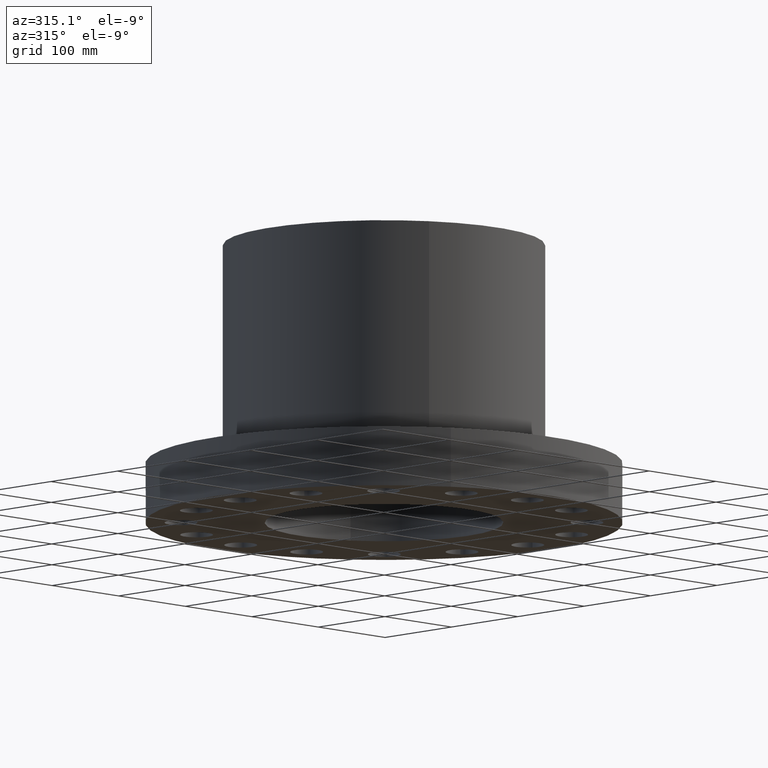
[diagram: clean part render]
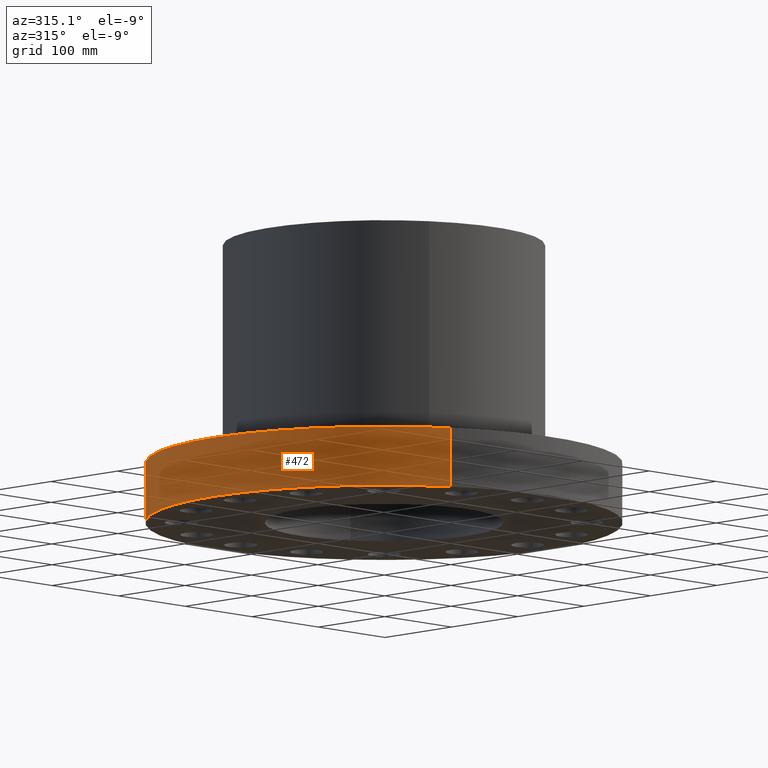
[diagram: same view with one face highlighted and labeled with its STEP entity id]
A machine part, auxiliary view. The second image highlights one B-rep face of the part: STEP entity #472.
In plain terms, the highlighted cylindrical surface (partial cylindrical patch) has radius 254 mm, axis along (0, 0, -1).
Its self-contained STEP definition (entity closure, byte-faithful):
#108=AXIS2_PLACEMENT_3D('Circle Axis2P3D',#106,#107,$) ;
#429=AXIS2_PLACEMENT_3D('Cylinder Axis2P3D',#426,#427,#428) ;
#433=AXIS2_PLACEMENT_3D('Circle Axis2P3D',#431,#432,$) ;
#442=AXIS2_PLACEMENT_3D('Circle Axis2P3D',#440,#441,$) ;
#449=AXIS2_PLACEMENT_3D('Circle Axis2P3D',#447,#448,$) ;
#101=CARTESIAN_POINT('Vertex',(4.79425538606,8.77582561894,2.50000000001)) ;
#103=CARTESIAN_POINT('Vertex',(-4.79425538606,-8.77582561894,2.50000000001)) ;
#106=CARTESIAN_POINT('Axis2P3D Location',(0.,0.,2.50000000001)) ;
#426=CARTESIAN_POINT('Axis2P3D Location',(0.,0.,5.75000000002)) ;
#431=CARTESIAN_POINT('Axis2P3D Location',(0.,0.,1.1189649382E-015)) ;
#435=CARTESIAN_POINT('Vertex',(6.12323399576E-016,10.,0.)) ;
#437=CARTESIAN_POINT('Vertex',(4.79425538606,8.77582561894,1.1189649382E-015)) ;
#440=CARTESIAN_POINT('Axis2P3D Location',(0.,0.,1.1189649382E-015)) ;
#444=CARTESIAN_POINT('Vertex',(-10.,-1.22464679915E-015,0.)) ;
#447=CARTESIAN_POINT('Axis2P3D Location',(0.,0.,1.1189649382E-015)) ;
#451=CARTESIAN_POINT('Vertex',(-4.79425538606,-8.77582561894,1.1189649382E-015)) ;
#454=CARTESIAN_POINT('Line Origine',(-4.79425538606,-8.77582561894,1.25000000001)) ;
#459=CARTESIAN_POINT('Line Origine',(4.79425538606,8.77582561894,1.25000000001)) ;
#107=DIRECTION('Axis2P3D Direction',(0.,0.,-0.0393700787402)) ;
#427=DIRECTION('Axis2P3D Direction',(0.,0.,-0.0393700787402)) ;
#428=DIRECTION('Axis2P3D XDirection',(0.0188750212049,0.0345504945626,0.)) ;
#432=DIRECTION('Axis2P3D Direction',(0.,0.,-0.0393700787402)) ;
#441=DIRECTION('Axis2P3D Direction',(0.,0.,-0.0393700787402)) ;
#448=DIRECTION('Axis2P3D Direction',(0.,0.,-0.0393700787402)) ;
#455=DIRECTION('Vector Direction',(0.,0.,-0.0393700787402)) ;
#460=DIRECTION('Vector Direction',(0.,0.,-0.0393700787402)) ;
#456=VECTOR('Line Direction',#455,0.0393700787402) ;
#461=VECTOR('Line Direction',#460,0.0393700787402) ;
#465=ORIENTED_EDGE('',*,*,#439,.F.) ;
#466=ORIENTED_EDGE('',*,*,#446,.F.) ;
#467=ORIENTED_EDGE('',*,*,#453,.F.) ;
#468=ORIENTED_EDGE('',*,*,#458,.T.) ;
#469=ORIENTED_EDGE('',*,*,#110,.T.) ;
#470=ORIENTED_EDGE('',*,*,#463,.F.) ;
#472=ADVANCED_FACE('PartBody',(#471),#430,.T.) ;
#109=CIRCLE('generated circle',#108,10.) ;
#434=CIRCLE('generated circle',#433,10.) ;
#443=CIRCLE('generated circle',#442,10.) ;
#450=CIRCLE('generated circle',#449,10.) ;
#430=CYLINDRICAL_SURFACE('generated cylinder',#429,10.) ;
#110=EDGE_CURVE('',#104,#102,#109,.T.) ;
#439=EDGE_CURVE('',#436,#438,#434,.T.) ;
#446=EDGE_CURVE('',#445,#436,#443,.T.) ;
#453=EDGE_CURVE('',#452,#445,#450,.T.) ;
#458=EDGE_CURVE('',#452,#104,#457,.F.) ;
#463=EDGE_CURVE('',#438,#102,#462,.F.) ;
#464=EDGE_LOOP('',(#465,#466,#467,#468,#469,#470)) ;
#471=FACE_OUTER_BOUND('',#464,.T.) ;
#457=LINE('Line',#454,#456) ;
#462=LINE('Line',#459,#461) ;
#102=VERTEX_POINT('',#101) ;
#104=VERTEX_POINT('',#103) ;
#436=VERTEX_POINT('',#435) ;
#438=VERTEX_POINT('',#437) ;
#445=VERTEX_POINT('',#444) ;
#452=VERTEX_POINT('',#451) ;